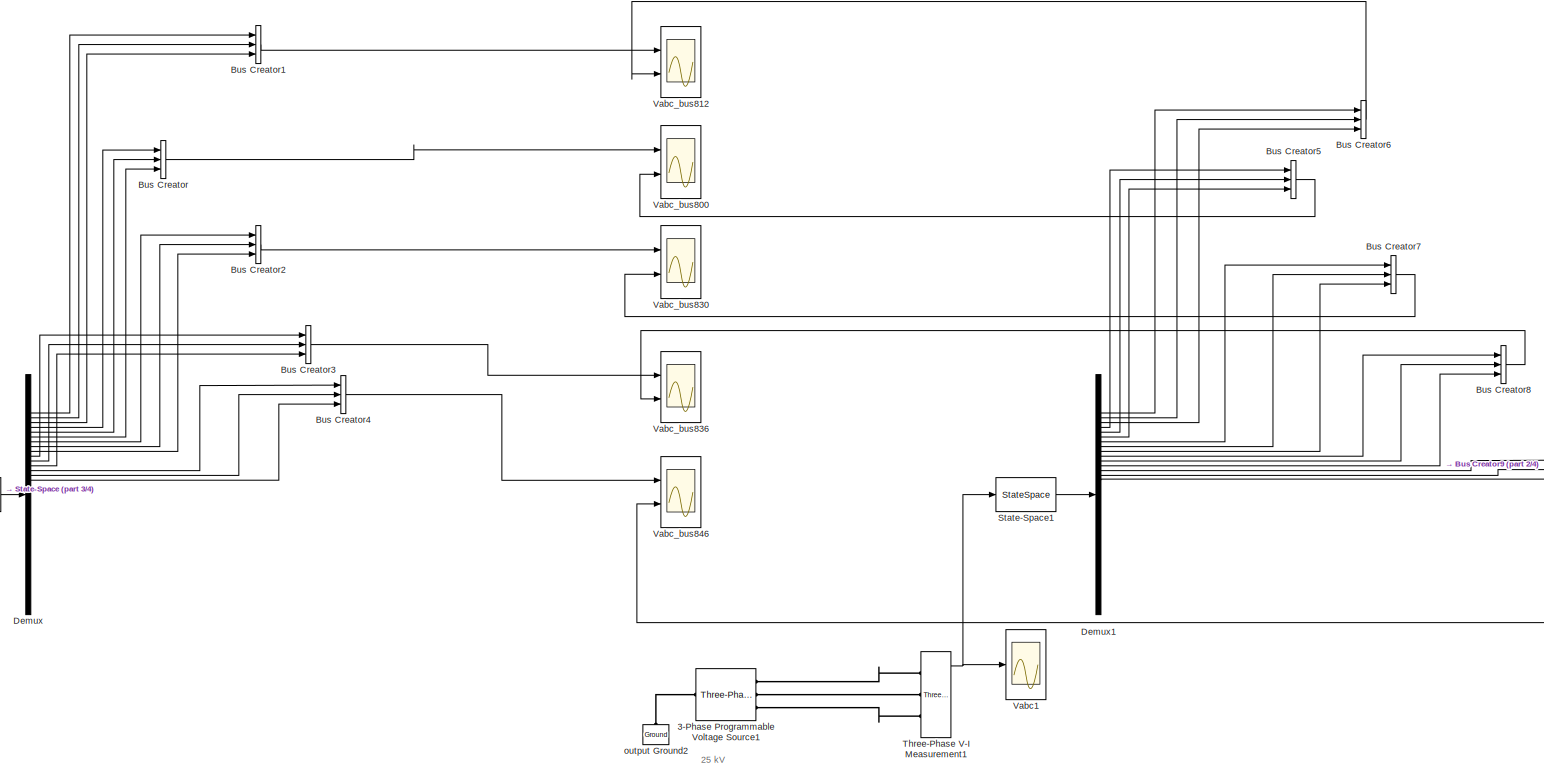
[diagram: root canvas - part 1/4, most of the canvas]
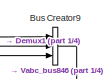
[diagram: root canvas - part 2/4, middle right region]
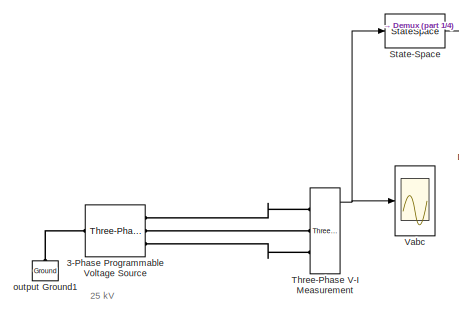
[diagram: root canvas - part 3/4, bottom left region]
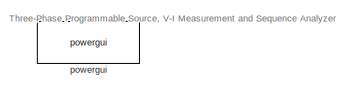
[diagram: root canvas - part 4/4, bottom left region]
MODEL slx_7f5c2b1ec0da
KIND model
CONFIG AbsTol = 1e-2
CONFIG EnableMultiTasking = off
CONFIG FixedStep = auto
CONFIG MaxStep = 5e-5
CONFIG MinStep = auto
CONFIG RelTol = 1e-3
CONFIG SampleTimeConstraint = Unconstrained
CONFIG SolverName = ode23t
CONFIG StartTime = 0.0
CONFIG StopTime = 0.2
BLOCK [Reference] 3-Phase Programmable Voltage Source  REF=spsThreePhaseProgrammableVoltageSourceLib/Three-Phase
Programmable
Voltage Source
  Ports = [0, 0, 0, 0, 0, 1, 3]
  SourceBlock = spsThreePhaseProgrammableVoltageSourceLib/Three-Phase\nProgrammable\nVoltage Source
  SourceProductBaseCode = PS
  SourceType = Three-Phase Programmable Voltage Source
BLOCK [Reference] 3-Phase Programmable Voltage Source1  REF=spsThreePhaseProgrammableVoltageSourceLib/Three-Phase
Programmable
Voltage Source
  Commented = on
  Ports = [0, 0, 0, 0, 0, 1, 3]
  SourceBlock = spsThreePhaseProgrammableVoltageSourceLib/Three-Phase\nProgrammable\nVoltage Source
  SourceProductBaseCode = PS
  SourceType = Three-Phase Programmable Voltage Source
BLOCK [BusCreator] Bus Creator
  DisplayOption = bar
  InheritFromInputs = on
  Inputs = 3
  Ports = [3, 1]
BLOCK [BusCreator] Bus Creator1
  DisplayOption = bar
  InheritFromInputs = on
  Inputs = 3
  Ports = [3, 1]
BLOCK [BusCreator] Bus Creator2
  DisplayOption = bar
  InheritFromInputs = on
  Inputs = 3
  Ports = [3, 1]
BLOCK [BusCreator] Bus Creator3
  DisplayOption = bar
  InheritFromInputs = on
  Inputs = 3
  Ports = [3, 1]
BLOCK [BusCreator] Bus Creator4
  DisplayOption = bar
  InheritFromInputs = on
  Inputs = 3
  Ports = [3, 1]
BLOCK [BusCreator] Bus Creator5
  Commented = on
  DisplayOption = bar
  InheritFromInputs = on
  Inputs = 3
  Ports = [3, 1]
BLOCK [BusCreator] Bus Creator6
  Commented = on
  DisplayOption = bar
  InheritFromInputs = on
  Inputs = 3
  Ports = [3, 1]
BLOCK [BusCreator] Bus Creator7
  Commented = on
  DisplayOption = bar
  InheritFromInputs = on
  Inputs = 3
  Ports = [3, 1]
BLOCK [BusCreator] Bus Creator8
  Commented = on
  DisplayOption = bar
  InheritFromInputs = on
  Inputs = 3
  Ports = [3, 1]
BLOCK [BusCreator] Bus Creator9
  Commented = on
  DisplayOption = bar
  InheritFromInputs = on
  Inputs = 3
  Ports = [3, 1]
BLOCK [Demux] Demux
  Outputs = 49
  Ports = [1, 49]
BLOCK [Demux] Demux1
  Commented = on
  Outputs = 49
  Ports = [1, 49]
BLOCK [StateSpace] State-Space
  A = A_svdkrylov
  AllowTunableDMatrix = on
  B = B_svdkrylov
  C = C_svdkrylov
  D = D_svdkrylov
  InitialCondition = initial_states_svdkrylov
  Ports = [1, 1]
BLOCK [StateSpace] State-Space1
  A = A_approx_bisimulation
  AllowTunableDMatrix = on
  B = B_approx_bisimulation
  C = C_approx_bisimulation
  Commented = on
  D = D_approx_bisimulation
  InitialCondition = initial_states_approx_bisimulation
  Ports = [1, 1]
BLOCK [Reference] Three-Phase V-I Measurement  REF=spsThreePhaseVIMeasurementLib/Three-Phase
V-I Measurement
  Ports = [0, 2, 0, 0, 0, 3, 3]
  SourceBlock = spsThreePhaseVIMeasurementLib/Three-Phase\nV-I Measurement
  SourceProductBaseCode = PS
  SourceType = Three-Phase VI Measurement
BLOCK [Reference] Three-Phase V-I Measurement1  REF=spsThreePhaseVIMeasurementLib/Three-Phase
V-I Measurement
  Commented = on
  Ports = [0, 2, 0, 0, 0, 3, 3]
  SourceBlock = spsThreePhaseVIMeasurementLib/Three-Phase\nV-I Measurement
  SourceProductBaseCode = PS
  SourceType = Three-Phase VI Measurement
BLOCK [Scope] Vabc
  Floating = off
  NumInputPorts = 1
  Ports = [1]
  ScopeSpecificationString = Simulink.scopes.TimeScopeBlockCfg('CurrentConfiguration', extmgr.ConfigurationSet(extmgr.Configuration('Core','General UI',true),extmgr.Configuration('Core','Source UI',true),extmgr.Configuration('Sources','WiredSimulink',true,'SampleTime','0','DataLoggingSaveFormat','Array','DataLoggingDecimation','1','DataLoggingDecimateData',true),extmgr.Configuration('Visuals','Time Domain',true,'SerializedDis...<+1575ch>
BLOCK [Scope] Vabc1
  Commented = on
  Floating = off
  NumInputPorts = 1
  Ports = [1]
  ScopeSpecificationString = Simulink.scopes.TimeScopeBlockCfg('CurrentConfiguration', extmgr.ConfigurationSet(extmgr.Configuration('Core','General UI',true),extmgr.Configuration('Core','Source UI',true),extmgr.Configuration('Sources','WiredSimulink',true,'SampleTime','0','DataLoggingSaveFormat','Array','DataLoggingDecimation','1','DataLoggingDecimateData',true,'DataLoggingVariableName','ScopeData1'),extmgr.Configuration('Vis...<+1614ch>
BLOCK [Scope] Vabc_bus800
  Floating = off
  NumInputPorts = 2
  Ports = [2]
  ScopeSpecificationString = Simulink.scopes.TimeScopeBlockCfg('CurrentConfiguration', extmgr.ConfigurationSet(extmgr.Configuration('Core','General UI',true),extmgr.Configuration('Core','Source UI',true),extmgr.Configuration('Sources','WiredSimulink',true,'SampleTime','0','DataLoggingSaveFormat','Array','DataLoggingDecimation','1','DataLoggingDecimateData',true,'DataLoggingVariableName','ScopeData4'),extmgr.Configuration('Vis...<+2339ch>
BLOCK [Scope] Vabc_bus812
  Floating = off
  NumInputPorts = 2
  Ports = [2]
  ScopeSpecificationString = Simulink.scopes.TimeScopeBlockCfg('CurrentConfiguration', extmgr.ConfigurationSet(extmgr.Configuration('Core','General UI',true),extmgr.Configuration('Core','Source UI',true),extmgr.Configuration('Sources','WiredSimulink',true,'SampleTime','0','DataLoggingSaveFormat','Array','DataLoggingDecimation','1','DataLoggingDecimateData',true,'DataLoggingVariableName','ScopeData3'),extmgr.Configuration('Vis...<+2335ch>
BLOCK [Scope] Vabc_bus830
  Floating = off
  NumInputPorts = 2
  Ports = [2]
  ScopeSpecificationString = Simulink.scopes.TimeScopeBlockCfg('CurrentConfiguration', extmgr.ConfigurationSet(extmgr.Configuration('Core','General UI',true),extmgr.Configuration('Core','Source UI',true),extmgr.Configuration('Sources','WiredSimulink',true,'SampleTime','0','DataLoggingSaveFormat','Array','DataLoggingDecimation','1','DataLoggingDecimateData',true,'DataLoggingVariableName','ScopeData5'),extmgr.Configuration('Vis...<+2244ch>
BLOCK [Scope] Vabc_bus836
  Floating = off
  NumInputPorts = 2
  Ports = [2]
  ScopeSpecificationString = Simulink.scopes.TimeScopeBlockCfg('CurrentConfiguration', extmgr.ConfigurationSet(extmgr.Configuration('Core','General UI',true),extmgr.Configuration('Core','Source UI',true),extmgr.Configuration('Sources','WiredSimulink',true,'SampleTime','0','DataLoggingSaveFormat','Array','DataLoggingDecimation','1','DataLoggingDecimateData',true,'DataLoggingVariableName','ScopeData6'),extmgr.Configuration('Vis...<+2320ch>
BLOCK [Scope] Vabc_bus846
  Floating = off
  NumInputPorts = 2
  Ports = [2]
  ScopeSpecificationString = Simulink.scopes.TimeScopeBlockCfg('CurrentConfiguration', extmgr.ConfigurationSet(extmgr.Configuration('Core','General UI',true),extmgr.Configuration('Core','Source UI',true),extmgr.Configuration('Sources','WiredSimulink',true,'SampleTime','0','DataLoggingSaveFormat','Array','DataLoggingDecimation','1','DataLoggingDecimateData',true,'DataLoggingVariableName','ScopeData7'),extmgr.Configuration('Vis...<+2313ch>
BLOCK [Reference] output Ground1  REF=spsGroundLib/Ground
  AttributesFormatString = \n
  NameLocation = right
  Ports = [0, 0, 0, 0, 0, 1]
  SourceBlock = spsGroundLib/Ground
  SourceProductBaseCode = PS
  SourceType = Ground
BLOCK [Reference] output Ground2  REF=spsGroundLib/Ground
  AttributesFormatString = \n
  Commented = on
  NameLocation = right
  Ports = [0, 0, 0, 0, 0, 1]
  SourceBlock = spsGroundLib/Ground
  SourceProductBaseCode = PS
  SourceType = Ground
BLOCK [Reference] powergui  REF=spspowerguiLib/powergui
  Ports = []
  Priority = 2
  SourceBlock = spspowerguiLib/powergui
  SourceProductBaseCode = PS
  SourceType = PSB option menu block
ANNOTATION (root): 25 kV
ANNOTATION (root): Three-Phase Programmable Source, V-I Measurement and Sequence Analyzer
LINE Bus Creator1:1 -> Vabc_bus812:1
LINE Bus Creator2:1 -> Vabc_bus830:1
LINE Bus Creator3:1 -> Vabc_bus836:1
LINE Bus Creator4:1 -> Vabc_bus846:1
LINE Bus Creator5:1 -> Vabc_bus800:2
LINE Bus Creator6:1 -> Vabc_bus812:2
LINE Bus Creator7:1 -> Vabc_bus830:2
LINE Bus Creator8:1 -> Vabc_bus836:2
LINE Bus Creator9:1 -> Vabc_bus846:2
LINE Bus Creator:1 -> Vabc_bus800:1
LINE Demux1:10 -> Bus Creator6:3
LINE Demux1:11 -> Bus Creator5:1
LINE Demux1:12 -> Bus Creator5:2
LINE Demux1:13 -> Bus Creator5:3
LINE Demux1:14 -> Bus Creator7:1
LINE Demux1:15 -> Bus Creator7:2
LINE Demux1:16 -> Bus Creator7:3
LINE Demux1:17 -> Bus Creator8:1
LINE Demux1:18 -> Bus Creator8:2
LINE Demux1:19 -> Bus Creator8:3
LINE Demux1:20 -> Bus Creator9:1
LINE Demux1:21 -> Bus Creator9:2
LINE Demux1:22 -> Bus Creator9:3
LINE Demux1:8 -> Bus Creator6:1
LINE Demux1:9 -> Bus Creator6:2
LINE Demux:10 -> Bus Creator1:3
LINE Demux:11 -> Bus Creator:1
LINE Demux:12 -> Bus Creator:2
LINE Demux:13 -> Bus Creator:3
LINE Demux:14 -> Bus Creator2:1
LINE Demux:15 -> Bus Creator2:2
LINE Demux:16 -> Bus Creator2:3
LINE Demux:17 -> Bus Creator3:1
LINE Demux:18 -> Bus Creator3:2
LINE Demux:19 -> Bus Creator3:3
LINE Demux:20 -> Bus Creator4:1
LINE Demux:21 -> Bus Creator4:2
LINE Demux:22 -> Bus Creator4:3
LINE Demux:8 -> Bus Creator1:1
LINE Demux:9 -> Bus Creator1:2
LINE State-Space1:1 -> Demux1:1
LINE State-Space:1 -> Demux:1
NET Three-Phase V-I Measurement1:1 -> State-Space1:1, Vabc1:1
NET Three-Phase V-I Measurement:1 -> State-Space:1, Vabc:1
PLINE 3-Phase Programmable Voltage Source1:LConn1 -- output Ground2:LConn1
PLINE 3-Phase Programmable Voltage Source1:RConn1 -- Three-Phase V-I Measurement1:LConn1
PLINE 3-Phase Programmable Voltage Source1:RConn2 -- Three-Phase V-I Measurement1:LConn2
PLINE 3-Phase Programmable Voltage Source1:RConn3 -- Three-Phase V-I Measurement1:LConn3
PLINE 3-Phase Programmable Voltage Source:LConn1 -- output Ground1:LConn1
PLINE 3-Phase Programmable Voltage Source:RConn1 -- Three-Phase V-I Measurement:LConn1
PLINE 3-Phase Programmable Voltage Source:RConn2 -- Three-Phase V-I Measurement:LConn2
PLINE 3-Phase Programmable Voltage Source:RConn3 -- Three-Phase V-I Measurement:LConn3
note: NET lines group one-source signal fan-out (src -> all destinations, sorted); 1:1 wires keep LINE
